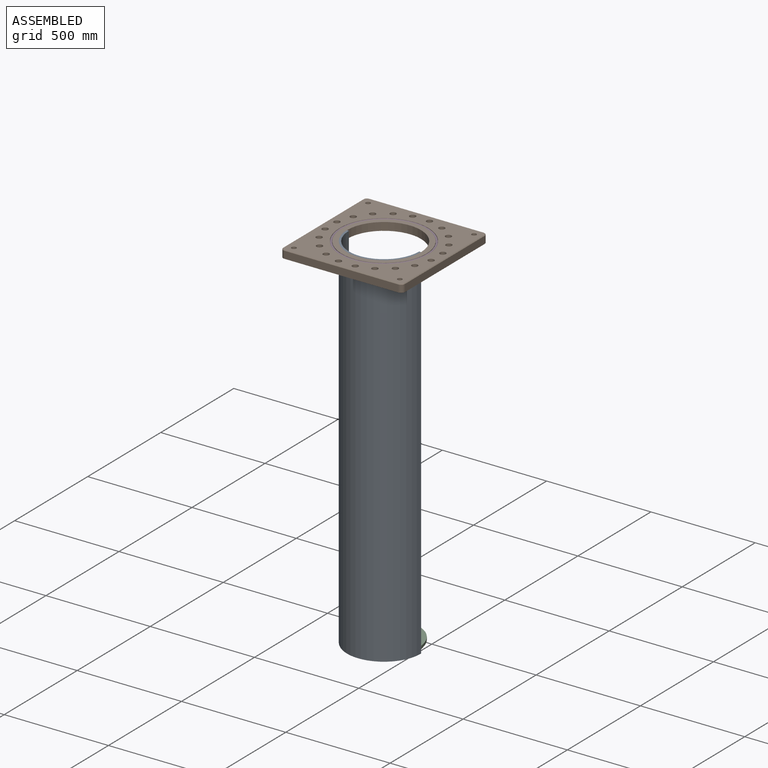
[diagram: assembled view]
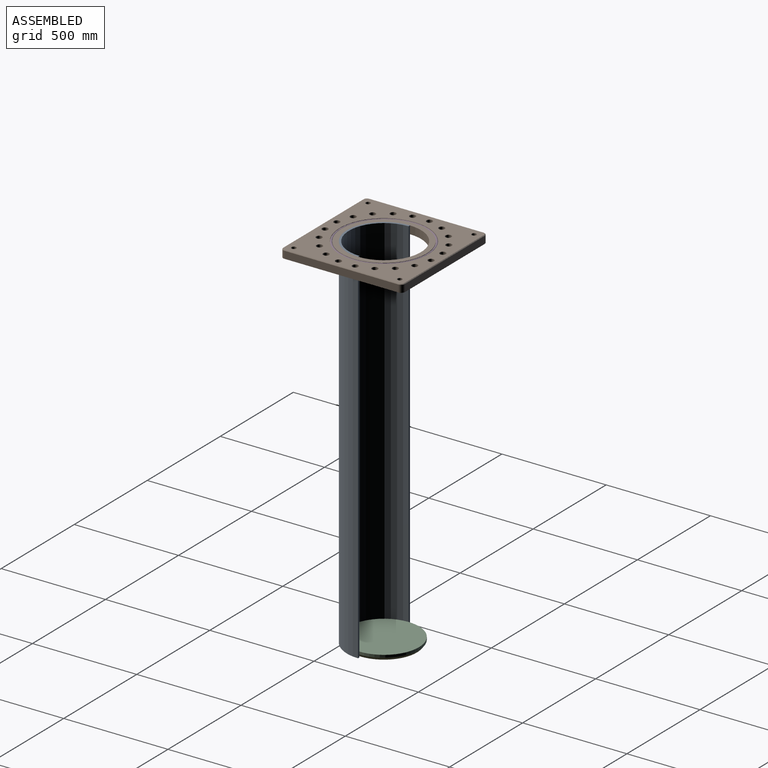
[diagram: assembled view, second angle]
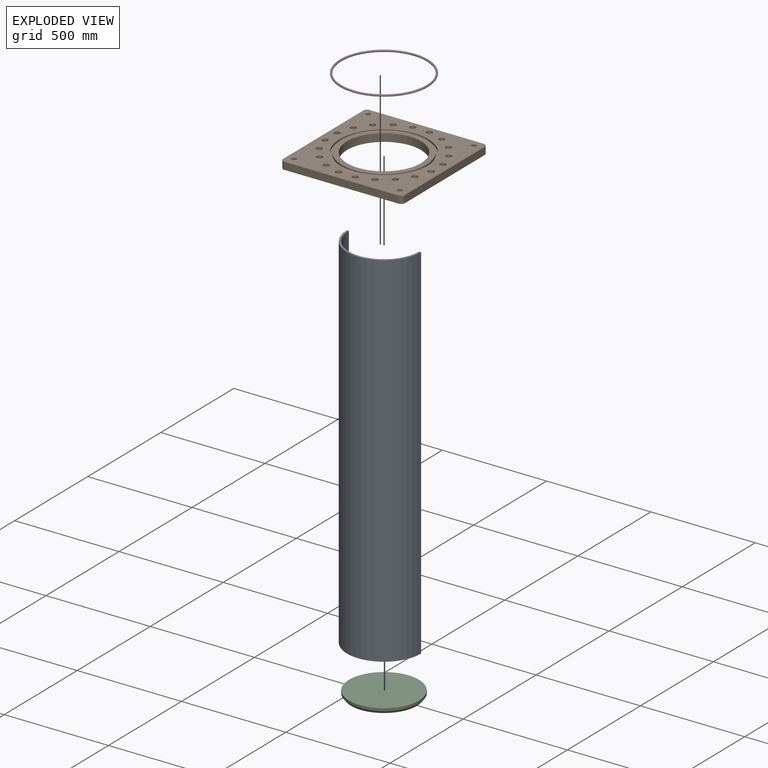
[diagram: exploded view]
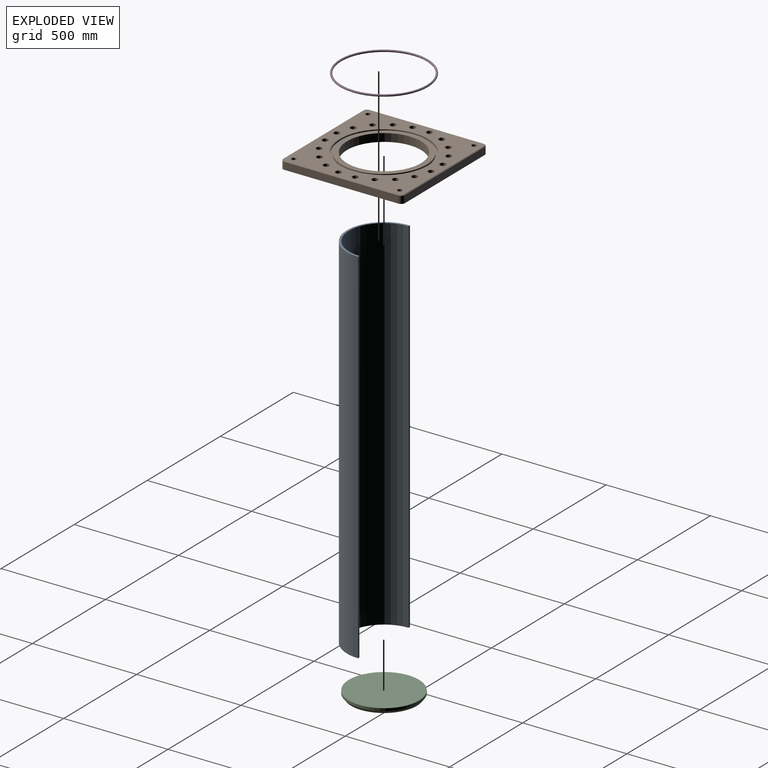
[diagram: exploded view, second angle]
ASSEMBLY  parts=4 mates=3
PART A: 6 faces, bbox 355.6x177.8x1739.9 mm
  f0: cylinder r=168.28mm len=1739.9mm, axis (0,0,-1), area 919800.8mm2, adj f2,f3,f4,f5
  f1: cylinder r=177.8mm len=1739.9mm, axis (0,0,-1), area 971864.9mm2, adj f2,f3,f4,f5
  f2: plane 355.6x177.8mm, normal (0,0,1), area 5177.9mm2, adj f0,f1,f4,f5
  f3: plane 355.6x177.8mm, normal (0,0,-1), area 5177.9mm2, adj f0,f1,f4,f5
  f4: plane 1739.9x9.53mm, normal (0,1,0), area 16572.5mm2, adj f0,f1,f2,f3
  f5: plane 1739.9x9.53mm, normal (0,1,0), area 16572.5mm2, adj f0,f1,f2,f3
PART B: 47 faces, bbox 584.2x584.2x38.1 mm
  f0: plane 406.4x406.4mm, normal (0,0,1), area 30402.4mm2, adj f8,f44
  f1: plane 546.1x34.93mm, normal (0,-1,0), area 19072.5mm2, adj f11,f12,f15,f16
  f2: plane 546.1x34.93mm, normal (1,0,0), area 19072.5mm2, adj f11,f12,f13,f19
  f3: plane 546.1x34.93mm, normal (0,1,0), area 19072.5mm2, adj f11,f13,f14,f23
  f4: cylinder r=11.11mm len=38.1mm, axis (0,0,-1), area 2660.2mm2, adj f10,f11
  f5: cylinder r=11.11mm len=38.1mm, axis (0,0,-1), area 2660.2mm2, adj f10,f11
  f6: cylinder r=11.11mm len=38.1mm, axis (0,0,-1), area 2660.2mm2, adj f10,f11
  f7: cylinder r=11.11mm len=38.1mm, axis (0,0,-1), area 2660.2mm2, adj f10,f11
  f8: cylinder r=177.8mm len=355.6mm, axis (0,0,-1), area 42563.4mm2, adj f0,f11
  f9: plane 546.1x34.93mm, normal (-1,0,0), area 19072.5mm2, adj f11,f14,f15,f20
  f10: plane 577.85x577.85mm, normal (0,0,1), area 177153.3mm2, adj f4,f5,f6,f7,f16,f17,f18,f19
  f11: plane 584.2x584.2mm, normal (0,0,-1), area 227285.6mm2, adj f1,f2,f3,f4,f5,f6,f7,f8
  f12: cylinder r=19.05mm len=34.93mm, axis (0,0,-1), area 1045.1mm2, adj f1,f2,f11,f17
  f13: cylinder r=19.05mm len=34.93mm, axis (0,0,1), area 1045.1mm2, adj f2,f3,f11,f21
  f14: cylinder r=19.05mm len=34.93mm, axis (0,0,-1), area 1045.1mm2, adj f3,f9,f11,f22
  f15: cylinder r=19.05mm len=34.93mm, axis (0,0,1), area 1045.1mm2, adj f1,f9,f11,f18
  f16: plane 546.1x3.18mm, normal (0,-0.71,0.71), area 2452.1mm2, adj f1,f10,f17,f18
  f17: cone r=15.88mm half-angle=45deg, axis (0,0,-1), area 123.2mm2, adj f10,f12,f16,f19
  f18: cone r=15.88mm half-angle=45deg, axis (0,0,-1), area 123.2mm2, adj f10,f15,f16,f20
  f19: plane 546.1x3.18mm, normal (0.71,0,0.71), area 2452.1mm2, adj f2,f10,f17,f21
  f20: plane 546.1x3.18mm, normal (-0.71,0,0.71), area 2452.1mm2, adj f9,f10,f18,f22
  f21: cone r=15.88mm half-angle=45deg, axis (0,0,-1), area 123.2mm2, adj f10,f13,f19,f23
  f22: cone r=15.88mm half-angle=45deg, axis (0,0,-1), area 123.2mm2, adj f10,f14,f20,f23
  f23: plane 546.1x3.18mm, normal (0,0.71,0.71), area 2452.1mm2, adj f3,f10,f21,f22
  f24: cylinder r=14.29mm len=38.1mm, axis (0,0,1), area 3420.3mm2, adj f10,f11
  f25: cylinder r=14.29mm len=38.1mm, axis (0,0,1), area 3420.3mm2, adj f10,f11
  f26: cylinder r=14.29mm len=38.1mm, axis (0,0,1), area 3420.3mm2, adj f10,f11
  f27: cylinder r=14.29mm len=38.1mm, axis (0,0,1), area 3420.3mm2, adj f10,f11
  f28: cylinder r=14.29mm len=38.1mm, axis (0,0,1), area 3420.3mm2, adj f10,f11
  f29: cylinder r=14.29mm len=38.1mm, axis (0,0,1), area 3420.3mm2, adj f10,f11
  f30: cylinder r=14.29mm len=38.1mm, axis (0,0,1), area 3420.3mm2, adj f10,f11
  f31: cylinder r=14.29mm len=38.1mm, axis (0,0,1), area 3420.3mm2, adj f10,f11
  f32: cylinder r=14.29mm len=38.1mm, axis (0,0,1), area 3420.3mm2, adj f10,f11
  f33: cylinder r=14.29mm len=38.1mm, axis (0,0,1), area 3420.3mm2, adj f10,f11
  f34: cylinder r=14.29mm len=38.1mm, axis (0,0,1), area 3420.3mm2, adj f10,f11
  f35: cylinder r=14.29mm len=38.1mm, axis (0,0,1), area 3420.3mm2, adj f10,f11
  f36: cylinder r=14.29mm len=38.1mm, axis (0,0,1), area 3420.3mm2, adj f10,f11
  f37: cylinder r=14.29mm len=38.1mm, axis (0,0,1), area 3420.3mm2, adj f10,f11
  f38: cylinder r=14.29mm len=38.1mm, axis (0,0,1), area 3420.3mm2, adj f10,f11
  f39: cylinder r=14.29mm len=38.1mm, axis (0,0,1), area 3420.3mm2, adj f10,f11
  f40: cylinder r=14.29mm len=38.1mm, axis (0,0,1), area 3420.3mm2, adj f10,f11
  f41: cylinder r=14.29mm len=38.1mm, axis (0,0,1), area 3420.3mm2, adj f10,f11
  f42: cylinder r=14.29mm len=38.1mm, axis (0,0,1), area 3420.3mm2, adj f10,f11
  f43: cylinder r=14.29mm len=38.1mm, axis (0,0,1), area 3420.3mm2, adj f10,f11
  f44: cylinder r=203.2mm len=406.4mm, axis (0,0,1), area 12161mm2, adj f0,f46
  f45: cylinder r=212.72mm len=425.45mm, axis (0,0,1), area 12731mm2, adj f10,f46
  f46: plane 425.45x425.45mm, normal (0,0,1), area 12446mm2, adj f44,f45
PART C: 4 faces, bbox 336.6x336.6x25.4 mm
  f0: cylinder r=168.28mm len=336.55mm, axis (0,0,1), area 13427.7mm2, adj f1,f3
  f1: plane 336.55x336.55mm, normal (0,0,1), area 88958.8mm2, adj f0
  f2: plane 316.91x316.91mm, normal (0,0,-1), area 78879.7mm2, adj f3
  f3: cone r=168.28mm half-angle=37.7deg, axis (0,0,1), area 16478mm2, adj f0,f2
PART D: 1 faces, bbox 425.5x425.5x9.5 mm
  f0: revolved ~425.45x425.45mm, area 39100.3mm2
PLACE A t=(-341.6,-553.51,-1353.12)mm
PLACE B t=(-341.6,-553.51,348.68)mm
PLACE C t=(-341.6,-553.51,-1353.12)mm
PLACE D t=(-341.6,-553.51,349.32)mm
MATE fastened C.f0 <-> A.f0  axis (0,0,-1) through (-341.6,-553.51,-1353.12)mm
MATE fastened D.f0 <-> B.f8  axis (0,0,-1) through (-341.6,-553.51,377.89)mm
MATE fastened B.f8 <-> A.f0  axis (0,0,1) through (-341.6,-553.51,386.78)mm
